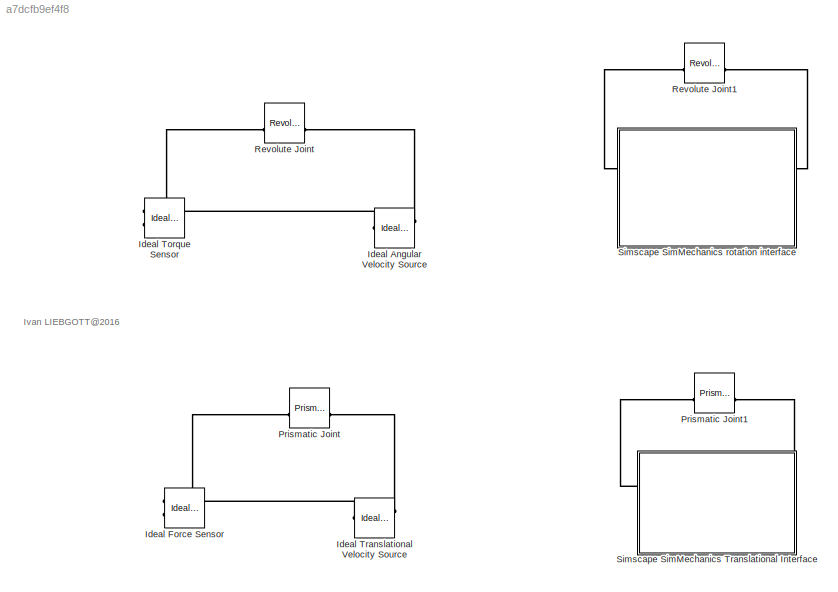
MODEL slx_a7dcfb9ef4f8
KIND model
CONFIG AbsTol = auto
CONFIG FixedStep = auto
CONFIG MaxStep = auto
CONFIG MinStep = auto
CONFIG RelTol = 1e-3
CONFIG SampleTimeConstraint = Unconstrained
CONFIG Solver = ode15s
CONFIG SolverMode = Auto
CONFIG SolverName = ode15s
CONFIG StartTime = 0.0
CONFIG StopTime = 10.0
BLOCK [Reference] Ideal Angular Velocity Source  REF=fl_lib/Mechanical/Mechanical Sources/Ideal Angular
Velocity Source
  Ports = [0, 0, 0, 0, 0, 1, 2]
  SourceBlock = fl_lib/Mechanical/Mechanical Sources/Ideal Angular\nVelocity Source
  SourceType = Ideal Angular\nVelocity Source
BLOCK [Reference] Ideal Force Sensor  REF=fl_lib/Mechanical/Mechanical Sensors/Ideal Force Sensor
  Ports = [0, 0, 0, 0, 0, 1, 2]
  SourceBlock = fl_lib/Mechanical/Mechanical Sensors/Ideal Force Sensor
  SourceType = Ideal Force Sensor
BLOCK [Reference] Ideal Torque Sensor  REF=fl_lib/Mechanical/Mechanical Sensors/Ideal Torque Sensor
  Ports = [0, 0, 0, 0, 0, 1, 2]
  SourceBlock = fl_lib/Mechanical/Mechanical Sensors/Ideal Torque Sensor
  SourceType = Ideal Torque Sensor
BLOCK [Reference] Ideal Translational Velocity Source  REF=fl_lib/Mechanical/Mechanical Sources/Ideal Translational
Velocity Source
  Ports = [0, 0, 0, 0, 0, 1, 2]
  SourceBlock = fl_lib/Mechanical/Mechanical Sources/Ideal Translational\nVelocity Source
  SourceType = Ideal Translational\nVelocity Source
BLOCK [Reference] Prismatic Joint  REF=sm_lib/Joints/Prismatic
Joint
  Ports = [0, 0, 0, 0, 0, 2, 2]
  SourceBlock = sm_lib/Joints/Prismatic\nJoint
  SourceType = Prismatic\nJoint
BLOCK [Reference] Prismatic Joint1  REF=sm_lib/Joints/Prismatic
Joint
  Ports = [0, 0, 0, 0, 0, 2, 2]
  SourceBlock = sm_lib/Joints/Prismatic\nJoint
  SourceType = Prismatic\nJoint
BLOCK [Reference] Revolute Joint  REF=sm_lib/Joints/Revolute Joint
  Ports = [0, 0, 0, 0, 0, 2, 2]
  SourceBlock = sm_lib/Joints/Revolute Joint
  SourceType = Revolute Joint
BLOCK [Reference] Revolute Joint1  REF=sm_lib/Joints/Revolute Joint
  Ports = [0, 0, 0, 0, 0, 2, 2]
  SourceBlock = sm_lib/Joints/Revolute Joint
  SourceType = Revolute Joint
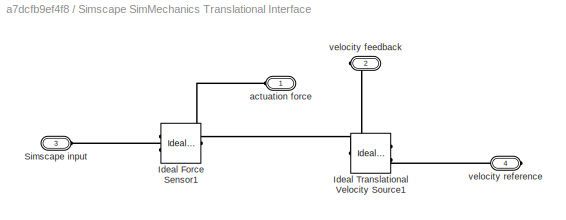
BLOCK [SubSystem] Simscape SimMechanics Translational Interface
  Ports = [0, 0, 0, 0, 0, 2, 2]
  RequestExecContextInheritance = off
  Variant = off
BLOCK [Reference] Simscape SimMechanics Translational Interface/Ideal Force Sensor1  REF=fl_lib/Mechanical/Mechanical Sensors/Ideal Force Sensor
  Ports = [0, 0, 0, 0, 0, 1, 2]
  SourceBlock = fl_lib/Mechanical/Mechanical Sensors/Ideal Force Sensor
  SourceType = Ideal Force Sensor
BLOCK [Reference] Simscape SimMechanics Translational Interface/Ideal Translational Velocity Source1  REF=fl_lib/Mechanical/Mechanical Sources/Ideal Translational
Velocity Source
  Ports = [0, 0, 0, 0, 0, 1, 2]
  SourceBlock = fl_lib/Mechanical/Mechanical Sources/Ideal Translational\nVelocity Source
  SourceType = Ideal Translational\nVelocity Source
BLOCK [PMIOPort] Simscape SimMechanics Translational Interface/Simscape input
  Port = 3
  Side = Left
BLOCK [PMIOPort] Simscape SimMechanics Translational Interface/actuation force
  Port = 1
  Side = Left
BLOCK [PMIOPort] Simscape SimMechanics Translational Interface/velocity feedback
  Port = 2
  Side = Right
BLOCK [PMIOPort] Simscape SimMechanics Translational Interface/velocity reference
  Port = 4
  Side = Right
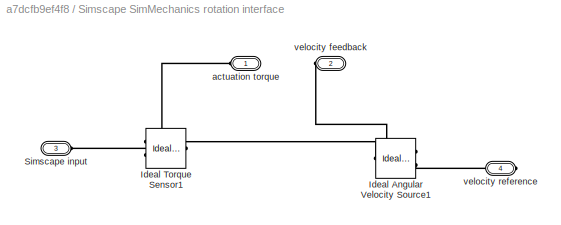
BLOCK [SubSystem] Simscape SimMechanics rotation interface
  Ports = [0, 0, 0, 0, 0, 2, 2]
  RequestExecContextInheritance = off
  Variant = off
BLOCK [Reference] Simscape SimMechanics rotation interface/Ideal Angular Velocity Source1  REF=fl_lib/Mechanical/Mechanical Sources/Ideal Angular
Velocity Source
  Ports = [0, 0, 0, 0, 0, 1, 2]
  SourceBlock = fl_lib/Mechanical/Mechanical Sources/Ideal Angular\nVelocity Source
  SourceType = Ideal Angular\nVelocity Source
BLOCK [Reference] Simscape SimMechanics rotation interface/Ideal Torque Sensor1  REF=fl_lib/Mechanical/Mechanical Sensors/Ideal Torque Sensor
  Ports = [0, 0, 0, 0, 0, 1, 2]
  SourceBlock = fl_lib/Mechanical/Mechanical Sensors/Ideal Torque Sensor
  SourceType = Ideal Torque Sensor
BLOCK [PMIOPort] Simscape SimMechanics rotation interface/Simscape input
  Port = 3
  Side = Left
BLOCK [PMIOPort] Simscape SimMechanics rotation interface/actuation torque
  Port = 1
  Side = Left
BLOCK [PMIOPort] Simscape SimMechanics rotation interface/velocity feedback
  Port = 2
  Side = Right
BLOCK [PMIOPort] Simscape SimMechanics rotation interface/velocity reference
  Port = 4
  Side = Right
ANNOTATION (root): Ivan LIEBGOTT@2016
PLINE Ideal Angular Velocity Source:LConn1 -- Ideal Torque Sensor:RConn1
PLINE Ideal Angular Velocity Source:RConn1 -- Revolute Joint:RConn2
PLINE Ideal Force Sensor:RConn1 -- Ideal Translational Velocity Source:LConn1
PLINE Ideal Force Sensor:RConn2 -- Prismatic Joint:LConn2
PLINE Ideal Torque Sensor:RConn2 -- Revolute Joint:LConn2
PLINE Ideal Translational Velocity Source:RConn1 -- Prismatic Joint:RConn2
PLINE Prismatic Joint1:LConn2 -- Simscape SimMechanics Translational Interface:LConn1
PLINE Prismatic Joint1:RConn2 -- Simscape SimMechanics Translational Interface:RConn1
PLINE Revolute Joint1:LConn2 -- Simscape SimMechanics rotation interface:LConn1
PLINE Revolute Joint1:RConn2 -- Simscape SimMechanics rotation interface:RConn1
PLINE Simscape SimMechanics Translational Interface/Ideal Force Sensor1:LConn1 -- Simscape SimMechanics Translational Interface/Simscape input:RConn1
PLINE Simscape SimMechanics Translational Interface/Ideal Force Sensor1:RConn1 -- Simscape SimMechanics Translational Interface/Ideal Translational Velocity Source1:LConn1
PLINE Simscape SimMechanics Translational Interface/Ideal Force Sensor1:RConn2 -- Simscape SimMechanics Translational Interface/actuation force:RConn1
PLINE Simscape SimMechanics Translational Interface/Ideal Translational Velocity Source1:RConn1 -- Simscape SimMechanics Translational Interface/velocity feedback:RConn1
PLINE Simscape SimMechanics Translational Interface/Ideal Translational Velocity Source1:RConn2 -- Simscape SimMechanics Translational Interface/velocity reference:RConn1
PLINE Simscape SimMechanics rotation interface/Ideal Angular Velocity Source1:LConn1 -- Simscape SimMechanics rotation interface/Ideal Torque Sensor1:RConn1
PLINE Simscape SimMechanics rotation interface/Ideal Angular Velocity Source1:RConn1 -- Simscape SimMechanics rotation interface/velocity feedback:RConn1
PLINE Simscape SimMechanics rotation interface/Ideal Angular Velocity Source1:RConn2 -- Simscape SimMechanics rotation interface/velocity reference:RConn1
PLINE Simscape SimMechanics rotation interface/Ideal Torque Sensor1:LConn1 -- Simscape SimMechanics rotation interface/Simscape input:RConn1
PLINE Simscape SimMechanics rotation interface/Ideal Torque Sensor1:RConn2 -- Simscape SimMechanics rotation interface/actuation torque:RConn1
